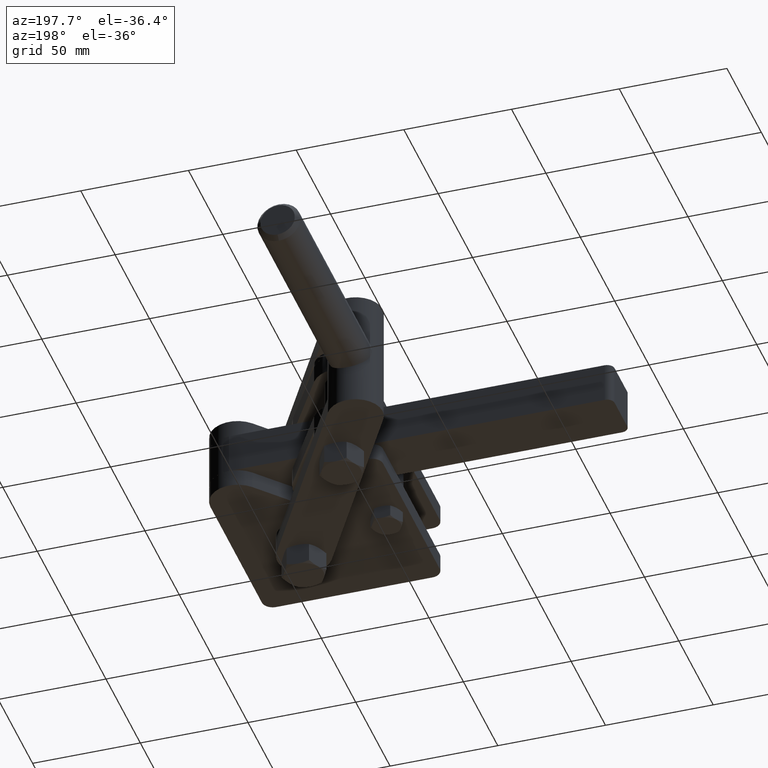
[diagram: clean part render]
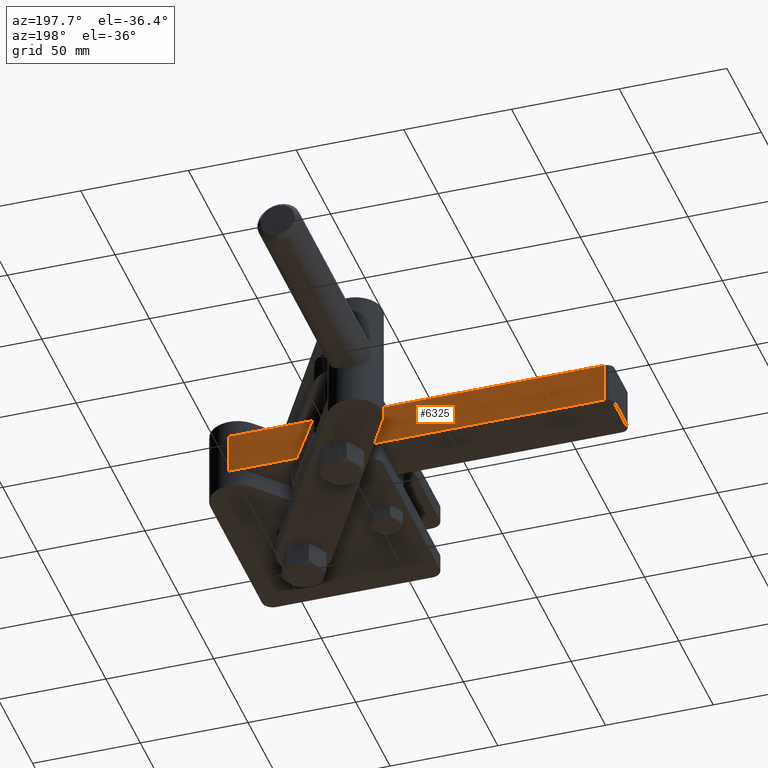
[diagram: same view with one face highlighted and labeled with its STEP entity id]
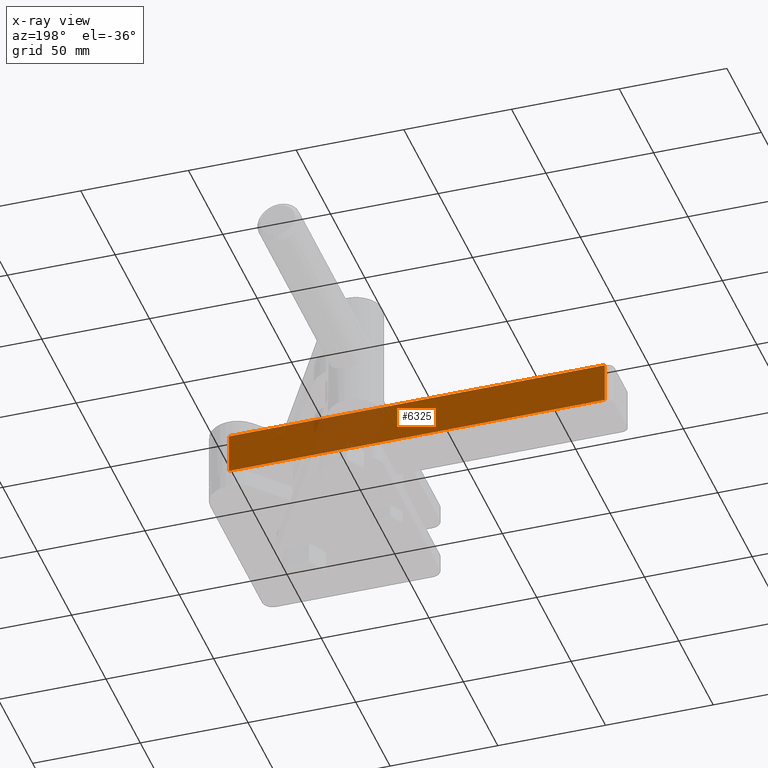
[diagram: x-ray of the same camera — body ghosted, the highlighted face saturated]
A machine part, auxiliary view. The second image highlights one B-rep face of the part: STEP entity #6325.
The next image is the same camera in x-ray: the body ghosted, the highlighted face saturated — about 17% of this face is hidden behind the body in this view.
In plain terms, the highlighted planar face has unit normal (0, -1, 0).
Its self-contained STEP definition (entity closure, byte-faithful):
#237 = AXIS2_PLACEMENT_3D ( 'NONE', #3809, #4399, #920 ) ;
#623 = CARTESIAN_POINT ( 'NONE',  ( 64.89947237278222800, 87.59999998903994400, -19.00000000000000000 ) ) ;
#780 = LINE ( 'NONE', #2944, #3875 ) ;
#920 = DIRECTION ( 'NONE',  ( 0.9999999991369877800, 4.154545020285658500E-005, 0.0000000000000000000 ) ) ;
#931 = CARTESIAN_POINT ( 'NONE',  ( -109.5005274767084800, 87.59275446252455300, -19.00000000000000000 ) ) ;
#1091 = EDGE_CURVE ( 'NONE', #3216, #5495, #6539, .T. ) ;
#1175 = DIRECTION ( 'NONE',  ( 0.0000000000000000000, -0.0000000000000000000, -1.000000000000000000 ) ) ;
#2061 = EDGE_CURVE ( 'NONE', #5495, #4094, #4404, .T. ) ;
#2409 = CARTESIAN_POINT ( 'NONE',  ( -109.5005274767084800, 87.59275446252455300, 0.0000000000000000000 ) ) ;
#2944 = CARTESIAN_POINT ( 'NONE',  ( -109.5005274767084800, 87.59275446252455300, 0.0000000000000000000 ) ) ;
#3080 = EDGE_CURVE ( 'NONE', #3120, #4094, #780, .T. ) ;
#3120 = VERTEX_POINT ( 'NONE', #2409 ) ;
#3214 = VECTOR ( 'NONE', #4683, 1000.000000000000100 ) ;
#3216 = VERTEX_POINT ( 'NONE', #4250 ) ;
#3286 = CARTESIAN_POINT ( 'NONE',  ( 64.89947237278222800, 87.59999998903994400, 0.0000000000000000000 ) ) ;
#3631 = ORIENTED_EDGE ( 'NONE', *, *, #2061, .T. ) ;
#3809 = CARTESIAN_POINT ( 'NONE',  ( 64.89947237278222800, 87.59999998903994400, 0.0000000000000000000 ) ) ;
#3875 = VECTOR ( 'NONE', #1175, 1000.000000000000000 ) ;
#3931 = LINE ( 'NONE', #4597, #5445 ) ;
#4094 = VERTEX_POINT ( 'NONE', #931 ) ;
#4250 = CARTESIAN_POINT ( 'NONE',  ( 64.89947237278222800, 87.59999998903994400, 0.0000000000000000000 ) ) ;
#4399 = DIRECTION ( 'NONE',  ( 4.154545020285658500E-005, -0.9999999991369877800, 0.0000000000000000000 ) ) ;
#4404 = LINE ( 'NONE', #623, #3214 ) ;
#4490 = DIRECTION ( 'NONE',  ( 0.0000000000000000000, -0.0000000000000000000, -1.000000000000000000 ) ) ;
#4597 = CARTESIAN_POINT ( 'NONE',  ( 64.89947237278222800, 87.59999998903994400, 0.0000000000000000000 ) ) ;
#4683 = DIRECTION ( 'NONE',  ( -0.9999999991369877800, -4.154545020285658500E-005, 0.0000000000000000000 ) ) ;
#4733 = FACE_OUTER_BOUND ( 'NONE', #5512, .T. ) ;
#5331 = ORIENTED_EDGE ( 'NONE', *, *, #3080, .F. ) ;
#5354 = CARTESIAN_POINT ( 'NONE',  ( 64.89947237278222800, 87.59999998903994400, -19.00000000000000000 ) ) ;
#5445 = VECTOR ( 'NONE', #6880, 1000.000000000000100 ) ;
#5462 = ORIENTED_EDGE ( 'NONE', *, *, #1091, .T. ) ;
#5495 = VERTEX_POINT ( 'NONE', #5354 ) ;
#5512 = EDGE_LOOP ( 'NONE', ( #3631, #5331, #6554, #5462 ) ) ;
#6325 = ADVANCED_FACE ( 'NONE', ( #4733 ), #7251, .F. ) ;
#6364 = VECTOR ( 'NONE', #4490, 1000.000000000000000 ) ;
#6518 = EDGE_CURVE ( 'NONE', #3216, #3120, #3931, .T. ) ;
#6539 = LINE ( 'NONE', #3286, #6364 ) ;
#6554 = ORIENTED_EDGE ( 'NONE', *, *, #6518, .F. ) ;
#6880 = DIRECTION ( 'NONE',  ( -0.9999999991369877800, -4.154545020285658500E-005, 0.0000000000000000000 ) ) ;
#7251 = PLANE ( 'NONE',  #237 ) ;